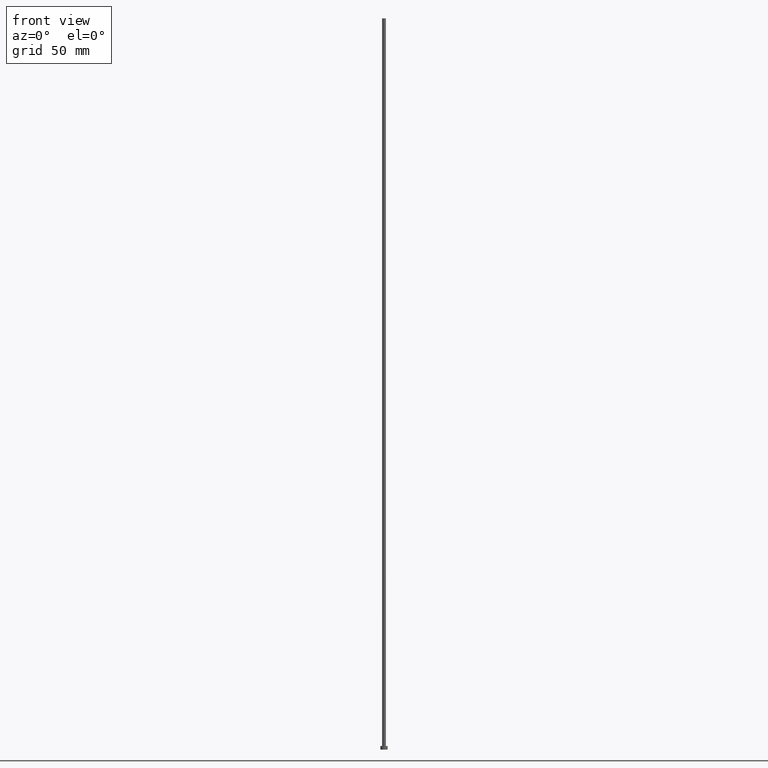
[diagram: clean part render]
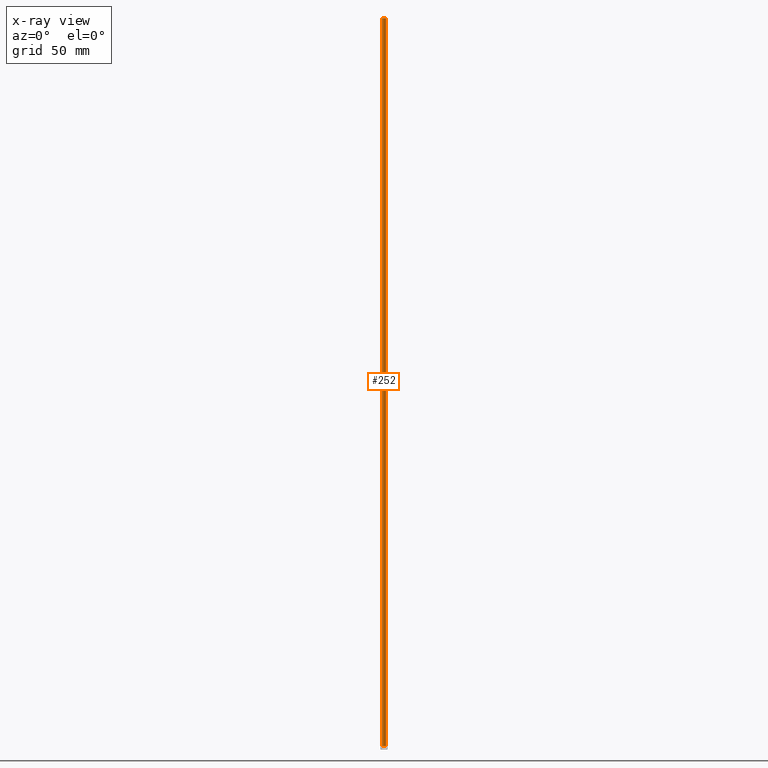
[diagram: x-ray — body ghosted, one internal face saturated and labeled with its STEP entity id]
A machine part, front view, then the same camera in x-ray: the body is ghosted and one INTERNAL B-rep face — a face not visible from any outside direction — is saturated and labeled: STEP entity #252.
In plain terms, the highlighted cylindrical surface (edge-blend (fillet) strip) has radius 1 mm, axis along (-0, -0, -1).
Its self-contained STEP definition (entity closure, byte-faithful):
#4 = CARTESIAN_POINT ( 'NONE',  ( -1.000000000000000000, 0.000000000000000000, 400.0000000000000000 ) ) ;
#8 = LINE ( 'NONE', #113, #173 ) ;
#11 = CARTESIAN_POINT ( 'NONE',  ( -1.000000000000000000, 0.000000000000000000, 400.0000000000000000 ) ) ;
#12 = DIRECTION ( 'NONE',  ( -0.000000000000000000, -0.000000000000000000, -1.000000000000000000 ) ) ;
#14 = DIRECTION ( 'NONE',  ( 1.000000000000000000, 0.000000000000000000, 0.000000000000000000 ) ) ;
#31 = ORIENTED_EDGE ( 'NONE', *, *, #157, .T. ) ;
#34 = DIRECTION ( 'NONE',  ( 0.000000000000000000, 0.000000000000000000, 1.000000000000000000 ) ) ;
#37 = DIRECTION ( 'NONE',  ( 1.000000000000000000, 0.000000000000000000, 0.000000000000000000 ) ) ;
#42 = EDGE_CURVE ( 'NONE', #43, #99, #8, .T. ) ;
#43 = VERTEX_POINT ( 'NONE', #185 ) ;
#53 = CARTESIAN_POINT ( 'NONE',  ( 0.000000000000000000, 0.000000000000000000, 400.0000000000000000 ) ) ;
#56 = CIRCLE ( 'NONE', #129, 1.000000000000000000 ) ;
#68 = CYLINDRICAL_SURFACE ( 'NONE', #142, 1.000000000000000000 ) ;
#69 = VERTEX_POINT ( 'NONE', #4 ) ;
#78 = LINE ( 'NONE', #11, #198 ) ;
#85 = AXIS2_PLACEMENT_3D ( 'NONE', #186, #213, #37 ) ;
#97 = CARTESIAN_POINT ( 'NONE',  ( 1.000000000000000000, 1.224646799147353207E-16, 2.000000000000000000 ) ) ;
#99 = VERTEX_POINT ( 'NONE', #97 ) ;
#111 = CARTESIAN_POINT ( 'NONE',  ( -1.000000000000000000, 0.000000000000000000, 2.000000000000000000 ) ) ;
#113 = CARTESIAN_POINT ( 'NONE',  ( 1.000000000000000000, 1.224646799147353207E-16, 400.0000000000000000 ) ) ;
#116 = EDGE_CURVE ( 'NONE', #69, #224, #78, .T. ) ;
#129 = AXIS2_PLACEMENT_3D ( 'NONE', #53, #34, #14 ) ;
#136 = DIRECTION ( 'NONE',  ( -0.000000000000000000, -0.000000000000000000, -1.000000000000000000 ) ) ;
#142 = AXIS2_PLACEMENT_3D ( 'NONE', #190, #12, #225 ) ;
#145 = ORIENTED_EDGE ( 'NONE', *, *, #42, .T. ) ;
#146 = EDGE_CURVE ( 'NONE', #43, #69, #56, .T. ) ;
#148 = EDGE_LOOP ( 'NONE', ( #178, #145, #31, #204 ) ) ;
#152 = DIRECTION ( 'NONE',  ( -0.000000000000000000, -0.000000000000000000, -1.000000000000000000 ) ) ;
#157 = EDGE_CURVE ( 'NONE', #99, #224, #237, .T. ) ;
#172 = FACE_OUTER_BOUND ( 'NONE', #148, .T. ) ;
#173 = VECTOR ( 'NONE', #152, 1000.000000000000000 ) ;
#178 = ORIENTED_EDGE ( 'NONE', *, *, #146, .F. ) ;
#185 = CARTESIAN_POINT ( 'NONE',  ( 1.000000000000000000, 1.224646799147353207E-16, 400.0000000000000000 ) ) ;
#186 = CARTESIAN_POINT ( 'NONE',  ( 0.000000000000000000, 0.000000000000000000, 2.000000000000000000 ) ) ;
#190 = CARTESIAN_POINT ( 'NONE',  ( 0.000000000000000000, 0.000000000000000000, 400.0000000000000000 ) ) ;
#198 = VECTOR ( 'NONE', #136, 1000.000000000000000 ) ;
#204 = ORIENTED_EDGE ( 'NONE', *, *, #116, .F. ) ;
#213 = DIRECTION ( 'NONE',  ( 0.000000000000000000, 0.000000000000000000, 1.000000000000000000 ) ) ;
#224 = VERTEX_POINT ( 'NONE', #111 ) ;
#225 = DIRECTION ( 'NONE',  ( -1.000000000000000000, 0.000000000000000000, 0.000000000000000000 ) ) ;
#237 = CIRCLE ( 'NONE', #85, 1.000000000000000000 ) ;
#252 = ADVANCED_FACE ( 'NONE', ( #172 ), #68, .T. ) ;